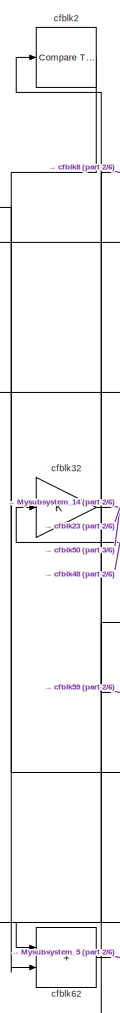
[diagram: root canvas - part 1/6, top left region]
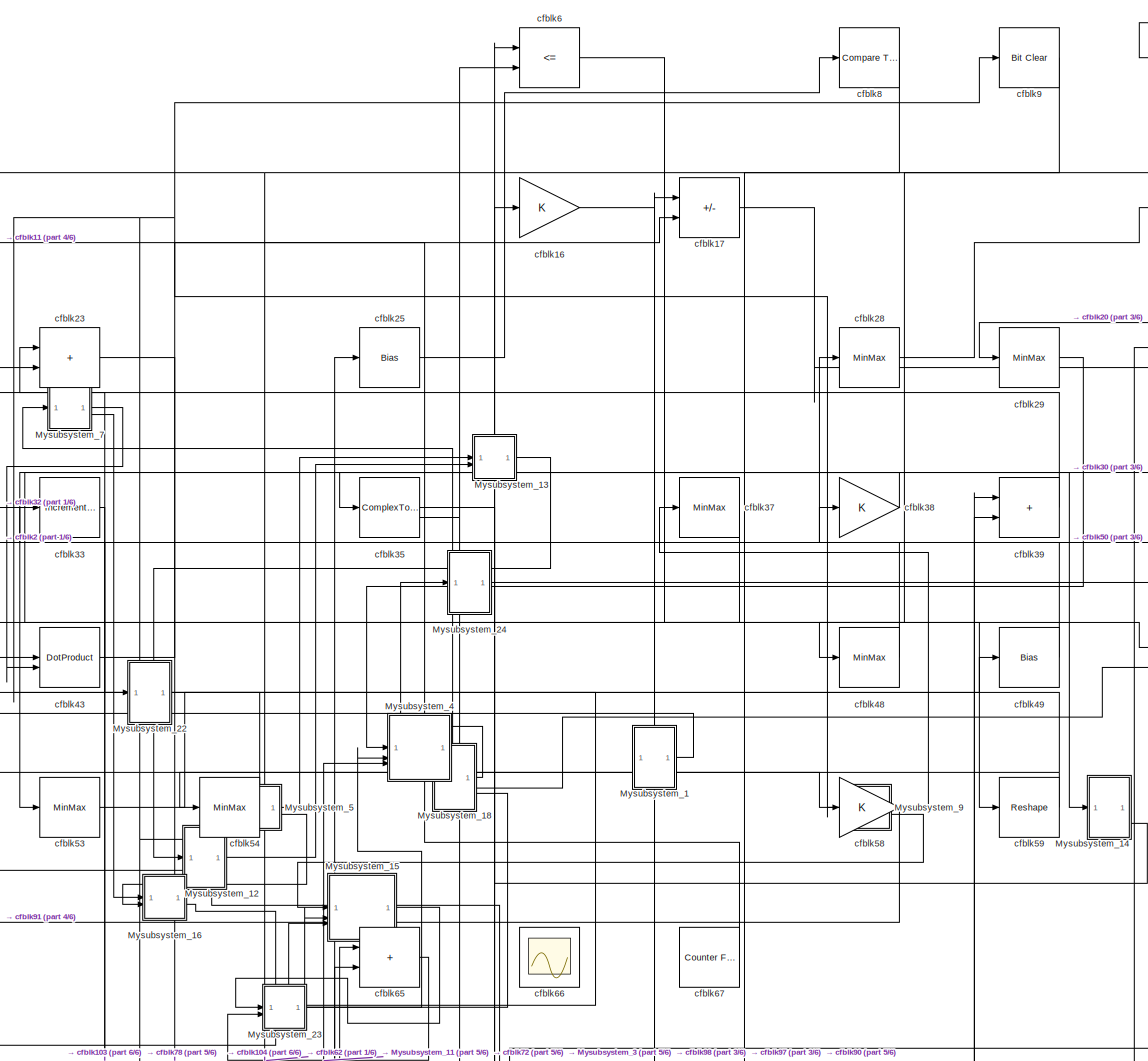
[diagram: root canvas - part 2/6, full width, middle band]
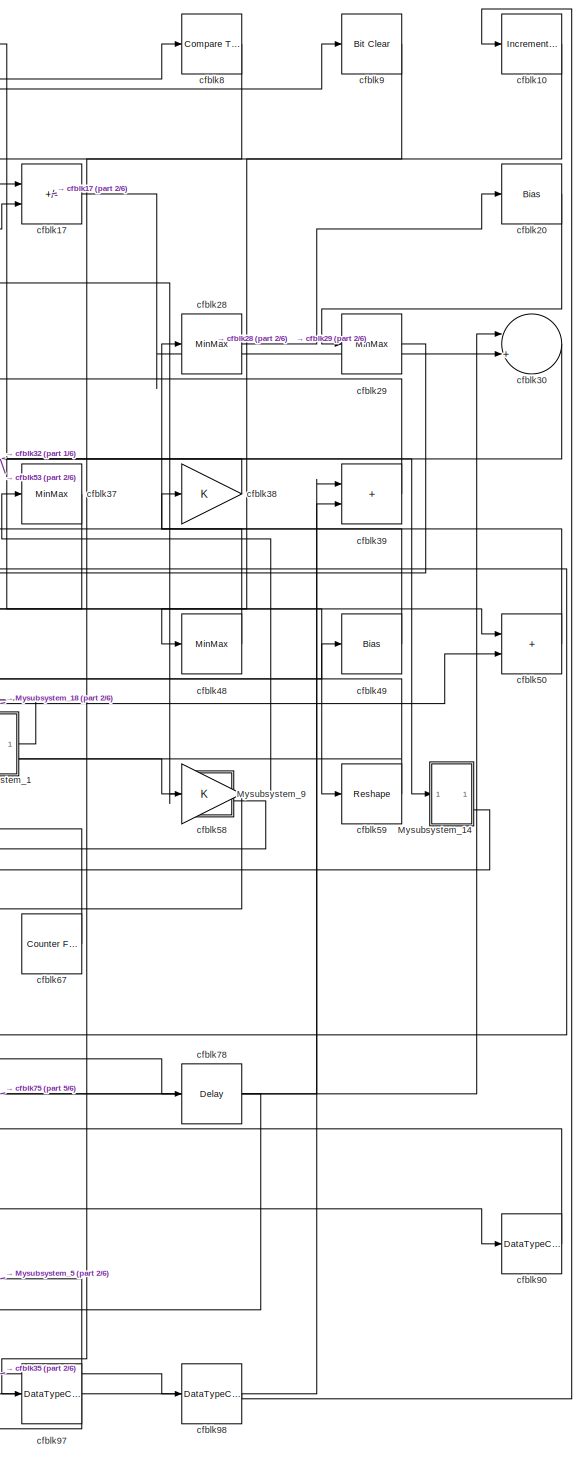
[diagram: root canvas - part 3/6, right side, full height]
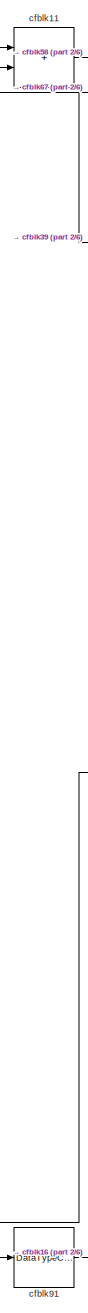
[diagram: root canvas - part 4/6, left side, full height]
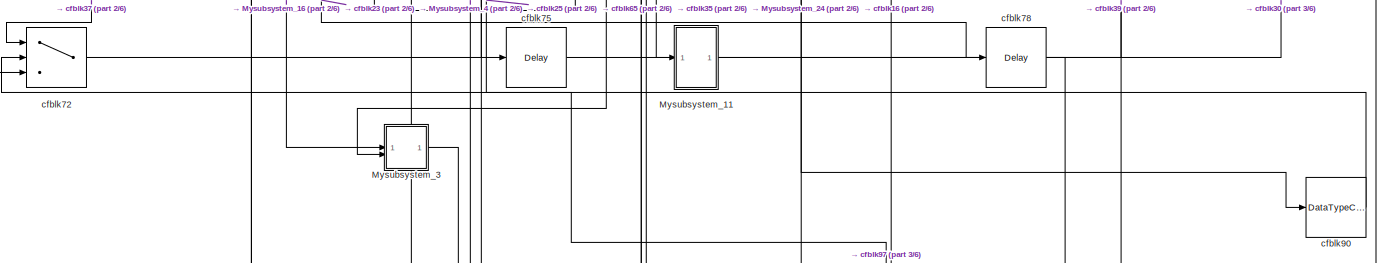
[diagram: root canvas - part 5/6, full width, bottom band]
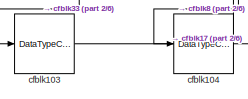
[diagram: root canvas - part 6/6, bottom left region]
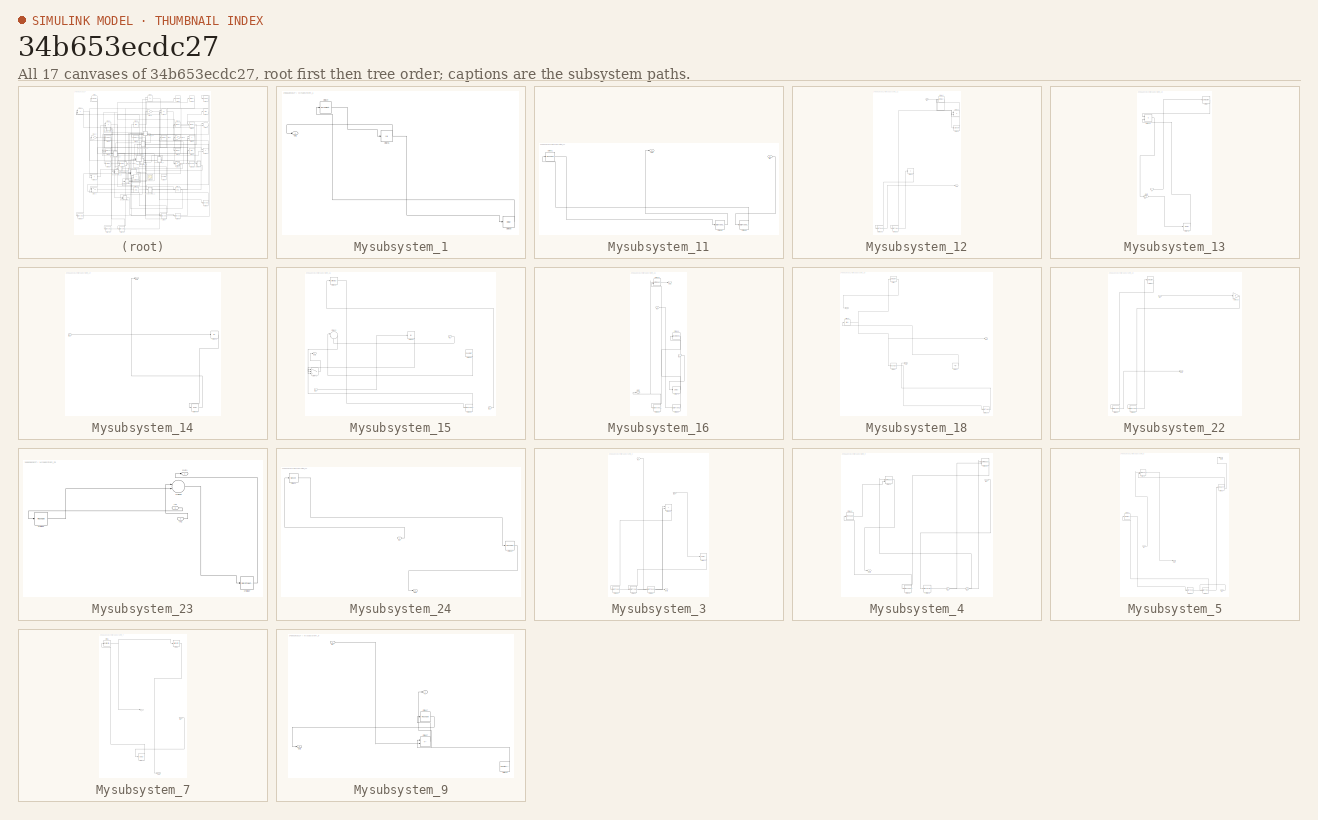
[diagram: thumbnail index - all 17 canvases of the model, root first then tree order]
MODEL slx_34b653ecdc27
KIND model
CONFIG AbsTol = auto
CONFIG EnableMultiTasking = off
CONFIG FixedStep = auto
CONFIG MaxStep = auto
CONFIG MinStep = auto
CONFIG RelTol = 1e-3
CONFIG SampleTimeConstraint = Unconstrained
CONFIG SolverName = VariableStepAuto
CONFIG StartTime = 0.0
CONFIG StopTime = 10.0
BLOCK [SubSystem] Mysubsystem_1
  RTWFcnName = Mysubsystem_1
  RTWFcnNameOpts = User specified
  RTWFileNameOpts = Use function name
  RTWSystemCode = Reusable function
  TreatAsAtomicUnit = on
BLOCK [Outport] Mysubsystem_1/Out1
BLOCK [Reference] Mysubsystem_1/cfblk34  REF=hdlsllib/Math
Operations/Increment
Real World
  SourceBlock = hdlsllib/Math\nOperations/Increment\nReal World
  SourceType = Real World Value Increment
BLOCK [Abs] Mysubsystem_1/cfblk46
  SaturateOnIntegerOverflow = off
BLOCK [Delay] Mysubsystem_1/cfblk80
  InputPortMap = u0
  SampleTime = 1
BLOCK [SubSystem] Mysubsystem_11
  RTWFcnName = Mysubsystem_11
  RTWFcnNameOpts = User specified
  RTWFileNameOpts = Use function name
  RTWSystemCode = Reusable function
  TreatAsAtomicUnit = on
BLOCK [Inport] Mysubsystem_11/In1
BLOCK [Outport] Mysubsystem_11/Out1
BLOCK [Reshape] Mysubsystem_11/cfblk51
BLOCK [DataTypeConversion] Mysubsystem_11/cfblk88
  OutDataTypeStr = uint8
  RndMeth = Floor
  SaturateOnIntegerOverflow = off
BLOCK [DataTypeConversion] Mysubsystem_11/cfblk89
  OutDataTypeStr = uint8
  RndMeth = Floor
  SaturateOnIntegerOverflow = off
BLOCK [SubSystem] Mysubsystem_12
  RTWFcnName = Mysubsystem_12
  RTWFcnNameOpts = User specified
  RTWFileNameOpts = Use function name
  RTWSystemCode = Reusable function
  TreatAsAtomicUnit = on
BLOCK [Inport] Mysubsystem_12/In1
BLOCK [Outport] Mysubsystem_12/Out1
BLOCK [DataTypeConversion] Mysubsystem_12/cfblk101
  OutDataTypeStr = uint8
  RndMeth = Floor
  SaturateOnIntegerOverflow = off
BLOCK [DataTypeConversion] Mysubsystem_12/cfblk102
  OutDataTypeStr = uint8
  RndMeth = Floor
  SaturateOnIntegerOverflow = off
BLOCK [MinMax] Mysubsystem_12/cfblk15
BLOCK [Product] Mysubsystem_12/cfblk26
  Inputs = */
  RndMeth = Zero
  SaturateOnIntegerOverflow = on
BLOCK [Signum] Mysubsystem_12/cfblk36
BLOCK [Sum] Mysubsystem_12/cfblk63
  IconShape = rectangular
  Inputs = +
BLOCK [SubSystem] Mysubsystem_13
  RTWFcnName = Mysubsystem_13
  RTWFcnNameOpts = User specified
  RTWFileNameOpts = Use function name
  RTWSystemCode = Reusable function
  TreatAsAtomicUnit = on
BLOCK [Inport] Mysubsystem_13/In2
  Port = 2
BLOCK [Outport] Mysubsystem_13/Out1
BLOCK [Product] Mysubsystem_13/cfblk14
  Inputs = */
  RndMeth = Zero
  SaturateOnIntegerOverflow = on
BLOCK [Reference] Mysubsystem_13/cfblk7  REF=hdlsllib/Logic and Bit
Operations/Compare
To Constant
  SourceBlock = hdlsllib/Logic and Bit\nOperations/Compare\nTo Constant
  SourceType = Compare To Constant
BLOCK [Delay] Mysubsystem_13/cfblk76
  InputPortMap = u0
  SampleTime = 1
BLOCK [Inport] Mysubsystem_13/u
BLOCK [SubSystem] Mysubsystem_14
  RTWFcnName = Mysubsystem_14
  RTWFcnNameOpts = User specified
  RTWFileNameOpts = Use function name
  RTWSystemCode = Reusable function
  TreatAsAtomicUnit = on
BLOCK [Inport] Mysubsystem_14/In1
BLOCK [Outport] Mysubsystem_14/Out1
BLOCK [Abs] Mysubsystem_14/cfblk40
  SaturateOnIntegerOverflow = off
BLOCK [Delay] Mysubsystem_14/cfblk79
  InputPortMap = u0
  SampleTime = 1
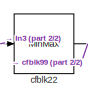
[diagram: Mysubsystem_15 - part 1/2, top left region]
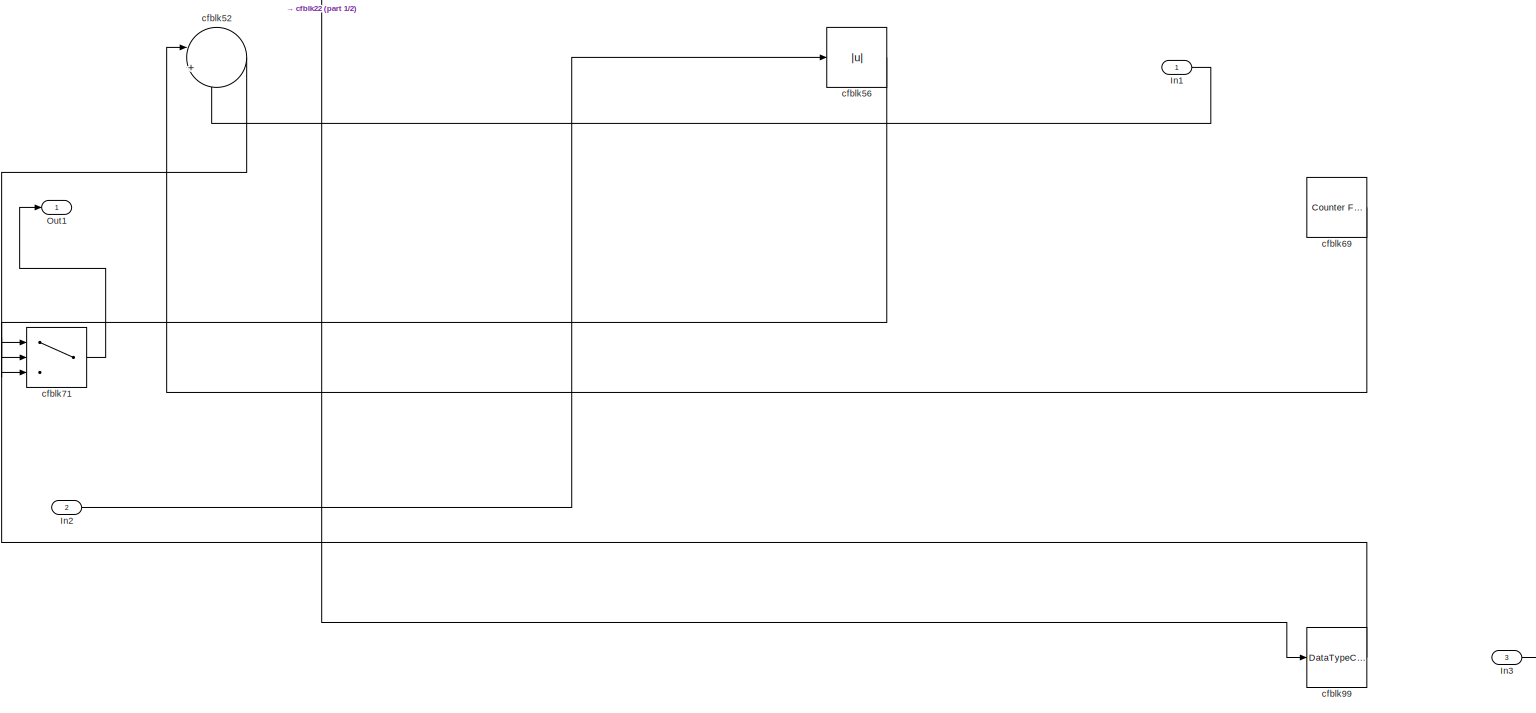
[diagram: Mysubsystem_15 - part 2/2, full width, bottom band]
BLOCK [SubSystem] Mysubsystem_15
  RTWFcnName = Mysubsystem_15
  RTWFcnNameOpts = User specified
  RTWFileNameOpts = Use function name
  RTWSystemCode = Reusable function
  TreatAsAtomicUnit = on
BLOCK [Inport] Mysubsystem_15/In1
BLOCK [Inport] Mysubsystem_15/In2
  Port = 2
BLOCK [Inport] Mysubsystem_15/In3
  Port = 3
BLOCK [Outport] Mysubsystem_15/Out1
BLOCK [MinMax] Mysubsystem_15/cfblk22
BLOCK [Sum] Mysubsystem_15/cfblk52
  Inputs = |++
BLOCK [Abs] Mysubsystem_15/cfblk56
  SaturateOnIntegerOverflow = off
BLOCK [Reference] Mysubsystem_15/cfblk69  REF=hdlsllib/Sources/Counter
Free-Running
  SourceBlock = hdlsllib/Sources/Counter\nFree-Running
  SourceType = Counter Free-Running
BLOCK [Switch] Mysubsystem_15/cfblk71
  InputSameDT = off
  SaturateOnIntegerOverflow = off
BLOCK [DataTypeConversion] Mysubsystem_15/cfblk99
  OutDataTypeStr = uint8
  RndMeth = Floor
  SaturateOnIntegerOverflow = off
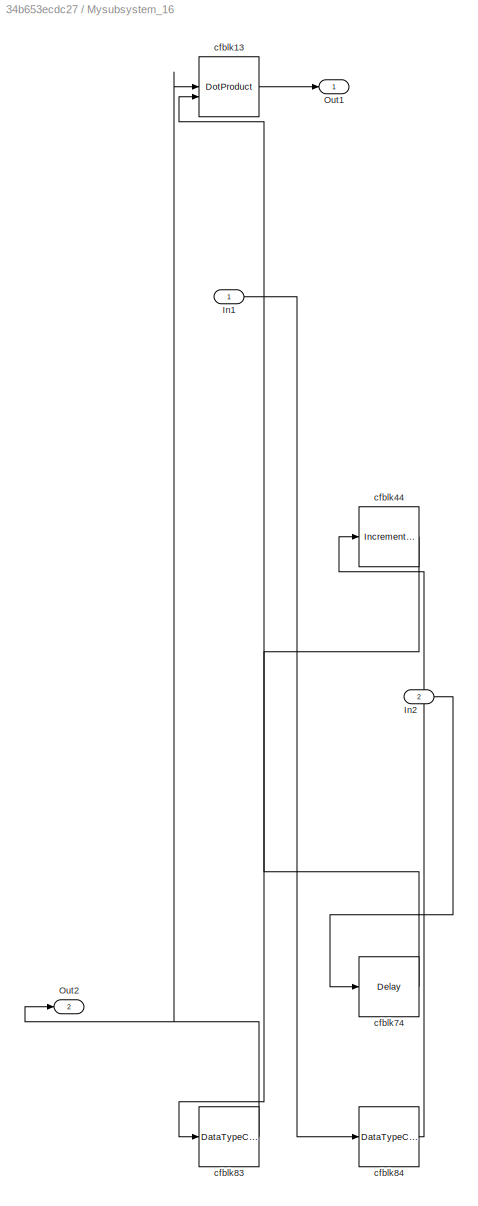
BLOCK [SubSystem] Mysubsystem_16
  RTWFcnName = Mysubsystem_16
  RTWFcnNameOpts = User specified
  RTWFileNameOpts = Use function name
  RTWSystemCode = Reusable function
  TreatAsAtomicUnit = on
BLOCK [Inport] Mysubsystem_16/In1
BLOCK [Inport] Mysubsystem_16/In2
  Port = 2
BLOCK [Outport] Mysubsystem_16/Out1
BLOCK [Outport] Mysubsystem_16/Out2
  Port = 2
BLOCK [DotProduct] Mysubsystem_16/cfblk13
  OutDataTypeStr = Inherit: Inherit via internal rule
BLOCK [Reference] Mysubsystem_16/cfblk44  REF=hdlsllib/Math
Operations/Increment
Real World
  SourceBlock = hdlsllib/Math\nOperations/Increment\nReal World
  SourceType = Real World Value Increment
BLOCK [Delay] Mysubsystem_16/cfblk74
  InputPortMap = u0
  SampleTime = 1
BLOCK [DataTypeConversion] Mysubsystem_16/cfblk83
  RndMeth = Floor
  SaturateOnIntegerOverflow = off
BLOCK [DataTypeConversion] Mysubsystem_16/cfblk84
  OutDataTypeStr = uint8
  RndMeth = Floor
  SaturateOnIntegerOverflow = off
BLOCK [SubSystem] Mysubsystem_18
  RTWFcnName = Mysubsystem_18
  RTWFcnNameOpts = User specified
  RTWFileNameOpts = Use function name
  RTWSystemCode = Reusable function
  TreatAsAtomicUnit = on
BLOCK [Outport] Mysubsystem_18/Out2
  Port = 2
BLOCK [Outport] Mysubsystem_18/Out3
  Port = 3
BLOCK [DataTypeConversion] Mysubsystem_18/cfblk100
  OutDataTypeStr = uint8
  RndMeth = Floor
  SaturateOnIntegerOverflow = off
BLOCK [Bias] Mysubsystem_18/cfblk31
  Bias = 0.0
  SaturateOnIntegerOverflow = off
BLOCK [Reference] Mysubsystem_18/cfblk4  REF=hdlsllib/Logic and Bit
Operations/Compare
To Zero
  SourceBlock = hdlsllib/Logic and Bit\nOperations/Compare\nTo Zero
  SourceType = Compare To Zero
BLOCK [Reshape] Mysubsystem_18/cfblk64
BLOCK [Ground] Mysubsystem_18/cfblk68
BLOCK [Outport] Mysubsystem_18/y
BLOCK [SubSystem] Mysubsystem_22
  RTWFcnName = Mysubsystem_22
  RTWFcnNameOpts = User specified
  RTWFileNameOpts = Use function name
  RTWSystemCode = Reusable function
  TreatAsAtomicUnit = on
BLOCK [Inport] Mysubsystem_22/In1
BLOCK [Outport] Mysubsystem_22/Out1
BLOCK [Gain] Mysubsystem_22/cfblk18
BLOCK [Reference] Mysubsystem_22/cfblk3  REF=hdlsllib/Logic and Bit
Operations/Compare
To Constant
  SourceBlock = hdlsllib/Logic and Bit\nOperations/Compare\nTo Constant
  SourceType = Compare To Constant
BLOCK [DataTypeConversion] Mysubsystem_22/cfblk81
  OutDataTypeStr = uint8
  RndMeth = Floor
  SaturateOnIntegerOverflow = off
BLOCK [DataTypeConversion] Mysubsystem_22/cfblk82
  OutDataTypeStr = uint8
  RndMeth = Floor
  SaturateOnIntegerOverflow = off
BLOCK [SubSystem] Mysubsystem_23
  RTWFcnName = Mysubsystem_23
  RTWFcnNameOpts = User specified
  RTWFileNameOpts = Use function name
  RTWSystemCode = Reusable function
  TreatAsAtomicUnit = on
BLOCK [Inport] Mysubsystem_23/In1
BLOCK [Inport] Mysubsystem_23/In2
  Port = 2
BLOCK [Outport] Mysubsystem_23/Out1
BLOCK [Sum] Mysubsystem_23/cfblk55
  Inputs = |++
BLOCK [Reshape] Mysubsystem_23/cfblk61
BLOCK [DataTypeConversion] Mysubsystem_23/cfblk87
  OutDataTypeStr = uint8
  RndMeth = Floor
  SaturateOnIntegerOverflow = off
BLOCK [SubSystem] Mysubsystem_24
  RTWFcnName = Mysubsystem_24
  RTWFcnNameOpts = User specified
  RTWFileNameOpts = Use function name
  RTWSystemCode = Reusable function
  TreatAsAtomicUnit = on
BLOCK [Inport] Mysubsystem_24/In1
BLOCK [Outport] Mysubsystem_24/Out1
BLOCK [Signum] Mysubsystem_24/cfblk21
BLOCK [Reshape] Mysubsystem_24/cfblk60
BLOCK [SubSystem] Mysubsystem_3
  RTWFcnName = Mysubsystem_3
  RTWFcnNameOpts = User specified
  RTWFileNameOpts = Use function name
  RTWSystemCode = Reusable function
  TreatAsAtomicUnit = on
BLOCK [Inport] Mysubsystem_3/In1
BLOCK [Inport] Mysubsystem_3/In2
  Port = 2
BLOCK [Outport] Mysubsystem_3/Out1
BLOCK [Sum] Mysubsystem_3/cfblk45
  IconShape = rectangular
BLOCK [Delay] Mysubsystem_3/cfblk77
  InputPortMap = u0
  SampleTime = 1
BLOCK [DataTypeConversion] Mysubsystem_3/cfblk92
  RndMeth = Floor
  SaturateOnIntegerOverflow = off
BLOCK [DataTypeConversion] Mysubsystem_3/cfblk93
  OutDataTypeStr = uint8
  RndMeth = Floor
  SaturateOnIntegerOverflow = off
BLOCK [DataTypeConversion] Mysubsystem_3/cfblk94
  OutDataTypeStr = uint8
  RndMeth = Floor
  SaturateOnIntegerOverflow = off
BLOCK [SubSystem] Mysubsystem_4
  RTWFcnName = Mysubsystem_4
  RTWFcnNameOpts = User specified
  RTWFileNameOpts = Use function name
  RTWSystemCode = Reusable function
  TreatAsAtomicUnit = on
BLOCK [Inport] Mysubsystem_4/In1
BLOCK [Inport] Mysubsystem_4/In2
  Port = 2
BLOCK [Inport] Mysubsystem_4/In3
  Port = 3
BLOCK [Outport] Mysubsystem_4/Out1
BLOCK [DotProduct] Mysubsystem_4/cfblk19
  OutDataTypeStr = Inherit: Inherit via internal rule
BLOCK [DotProduct] Mysubsystem_4/cfblk24
  OutDataTypeStr = Inherit: Inherit via internal rule
BLOCK [Reshape] Mysubsystem_4/cfblk42
BLOCK [DataTypeConversion] Mysubsystem_4/cfblk85
  OutDataTypeStr = uint8
  RndMeth = Floor
  SaturateOnIntegerOverflow = off
BLOCK [DataTypeConversion] Mysubsystem_4/cfblk86
  OutDataTypeStr = uint8
  RndMeth = Floor
  SaturateOnIntegerOverflow = off
BLOCK [SubSystem] Mysubsystem_5
  RTWFcnName = Mysubsystem_5
  RTWFcnNameOpts = User specified
  RTWFileNameOpts = Use function name
  RTWSystemCode = Reusable function
  TreatAsAtomicUnit = on
BLOCK [Inport] Mysubsystem_5/In1
BLOCK [Inport] Mysubsystem_5/In2
  Port = 2
BLOCK [Outport] Mysubsystem_5/Out1
BLOCK [Outport] Mysubsystem_5/Out2
  Port = 2
BLOCK [DotProduct] Mysubsystem_5/cfblk12
  OutDataTypeStr = Inherit: Inherit via internal rule
BLOCK [ComplexToRealImag] Mysubsystem_5/cfblk27
BLOCK [MinMax] Mysubsystem_5/cfblk41
BLOCK [DataTypeConversion] Mysubsystem_5/cfblk95
  OutDataTypeStr = uint8
  RndMeth = Floor
  SaturateOnIntegerOverflow = off
BLOCK [DataTypeConversion] Mysubsystem_5/cfblk96
  OutDataTypeStr = uint8
  RndMeth = Floor
  SaturateOnIntegerOverflow = off
BLOCK [SubSystem] Mysubsystem_7
  RTWFcnName = Mysubsystem_7
  RTWFcnNameOpts = User specified
  RTWFileNameOpts = Use function name
  RTWSystemCode = Reusable function
  TreatAsAtomicUnit = on
BLOCK [Inport] Mysubsystem_7/In1
BLOCK [Outport] Mysubsystem_7/Out2
  Port = 2
BLOCK [Reference] Mysubsystem_7/cfblk1  REF=simulink/Logic and Bit
Operations/Extract Bits
  LibrarySourceBlock = hdlsllib/Logic and Bit\nOperations/Extract Bits
  SourceBlock = simulink/Logic and Bit\nOperations/Extract Bits
  SourceType = Extract Bits
BLOCK [ArithShift] Mysubsystem_7/cfblk5
  BitShiftNumber = 8
  InputPortMap = u0
BLOCK [Delay] Mysubsystem_7/cfblk73
  InputPortMap = u0
  SampleTime = 1
BLOCK [Outport] Mysubsystem_7/y
BLOCK [SubSystem] Mysubsystem_9
  RTWFcnName = Mysubsystem_9
  RTWFcnNameOpts = User specified
  RTWFileNameOpts = Use function name
  RTWSystemCode = Reusable function
  TreatAsAtomicUnit = on
BLOCK [Inport] Mysubsystem_9/In1
BLOCK [Outport] Mysubsystem_9/Out2
  Port = 2
BLOCK [Reshape] Mysubsystem_9/cfblk47
BLOCK [Sum] Mysubsystem_9/cfblk57
  IconShape = rectangular
  Inputs = +-
BLOCK [Reference] Mysubsystem_9/cfblk70  REF=hdlsllib/Sources/Counter
Limited
  SourceBlock = hdlsllib/Sources/Counter\nLimited
  SourceType = Counter Limited
BLOCK [Outport] Mysubsystem_9/y
BLOCK [Reference] cfblk10  REF=hdlsllib/Math
Operations/Increment
Real World
  SourceBlock = hdlsllib/Math\nOperations/Increment\nReal World
  SourceType = Real World Value Increment
BLOCK [DataTypeConversion] cfblk103
  OutDataTypeStr = uint8
  RndMeth = Floor
  SaturateOnIntegerOverflow = off
BLOCK [DataTypeConversion] cfblk104
  OutDataTypeStr = uint8
  RndMeth = Floor
  SaturateOnIntegerOverflow = off
BLOCK [Sum] cfblk11
  IconShape = rectangular
BLOCK [Gain] cfblk16
BLOCK [Sum] cfblk17
  IconShape = rectangular
  Inputs = +-
BLOCK [Reference] cfblk2  REF=hdlsllib/Logic and Bit
Operations/Compare
To Constant
  SourceBlock = hdlsllib/Logic and Bit\nOperations/Compare\nTo Constant
  SourceType = Compare To Constant
BLOCK [Bias] cfblk20
  Bias = 0.0
  SaturateOnIntegerOverflow = off
BLOCK [Sum] cfblk23
  IconShape = rectangular
BLOCK [Bias] cfblk25
  Bias = 0.0
  SaturateOnIntegerOverflow = off
BLOCK [MinMax] cfblk28
BLOCK [MinMax] cfblk29
BLOCK [Sum] cfblk30
  Inputs = |++
BLOCK [Gain] cfblk32
BLOCK [Reference] cfblk33  REF=hdlsllib/Math
Operations/Increment
Real World
  SourceBlock = hdlsllib/Math\nOperations/Increment\nReal World
  SourceType = Real World Value Increment
BLOCK [ComplexToRealImag] cfblk35
BLOCK [MinMax] cfblk37
BLOCK [Gain] cfblk38
BLOCK [Sum] cfblk39
  IconShape = rectangular
BLOCK [DotProduct] cfblk43
  OutDataTypeStr = Inherit: Inherit via internal rule
BLOCK [MinMax] cfblk48
BLOCK [Bias] cfblk49
  Bias = 0.0
  SaturateOnIntegerOverflow = off
BLOCK [Sum] cfblk50
  IconShape = rectangular
BLOCK [MinMax] cfblk53
BLOCK [MinMax] cfblk54
BLOCK [Gain] cfblk58
BLOCK [Reshape] cfblk59
BLOCK [RelationalOperator] cfblk6
  InputSameDT = off
  Operator = <=
  OutDataTypeStr = boolean
BLOCK [Sum] cfblk62
  IconShape = rectangular
BLOCK [Sum] cfblk65
  IconShape = rectangular
BLOCK [Scope] cfblk66
  Floating = on
  NumInputPorts = 1
  ScopeSpecificationString = Simulink.scopes.TimeScopeBlockCfg('CurrentConfiguration', extmgr.ConfigurationSet(extmgr.Configuration('Core','General UI',true,'FigureColor',[0.156862745098039 0.156862745098039 0.156862745098039]),extmgr.Configuration('Core','Source UI',true),extmgr.Configuration('Sources','WiredSimulink',true,'DataLoggingVariableName','ScopeData1','DataLoggingSaveFormat','StructureWithTime','DataLoggingLimitDat...<+2713ch>
BLOCK [Reference] cfblk67  REF=hdlsllib/Sources/Counter
Free-Running
  SourceBlock = hdlsllib/Sources/Counter\nFree-Running
  SourceType = Counter Free-Running
BLOCK [Switch] cfblk72
  InputSameDT = off
  SaturateOnIntegerOverflow = off
BLOCK [Delay] cfblk75
  InputPortMap = u0
  SampleTime = 1
BLOCK [Delay] cfblk78
  InputPortMap = u0
  SampleTime = 1
BLOCK [Reference] cfblk8  REF=hdlsllib/Logic and Bit
Operations/Compare
To Zero
  SourceBlock = hdlsllib/Logic and Bit\nOperations/Compare\nTo Zero
  SourceType = Compare To Zero
BLOCK [Reference] cfblk9  REF=simulink/Logic and Bit
Operations/Bit Clear
  LibrarySourceBlock = hdlsllib/Logic and Bit\nOperations/Bit Clear
  SourceBlock = simulink/Logic and Bit\nOperations/Bit Clear
  SourceType = Bit Clear
BLOCK [DataTypeConversion] cfblk90
  OutDataTypeStr = uint8
  RndMeth = Floor
  SaturateOnIntegerOverflow = off
BLOCK [DataTypeConversion] cfblk91
  OutDataTypeStr = uint8
  RndMeth = Floor
  SaturateOnIntegerOverflow = off
BLOCK [DataTypeConversion] cfblk97
  RndMeth = Floor
  SaturateOnIntegerOverflow = off
BLOCK [DataTypeConversion] cfblk98
  OutDataTypeStr = uint8
  RndMeth = Floor
  SaturateOnIntegerOverflow = off
LINE Mysubsystem_1/cfblk34:1 -> Mysubsystem_1/cfblk46:1
NET Mysubsystem_1/cfblk46:1 -> Mysubsystem_1/Out1:1, Mysubsystem_1/cfblk80:1
LINE Mysubsystem_1/cfblk80:1 -> Mysubsystem_1/cfblk34:1
LINE Mysubsystem_11/In1:1 -> Mysubsystem_11/cfblk89:1
LINE Mysubsystem_11/cfblk51:1 -> Mysubsystem_11/cfblk88:1
LINE Mysubsystem_11/cfblk88:1 -> Mysubsystem_11/Out1:1
LINE Mysubsystem_11/cfblk89:1 -> Mysubsystem_11/cfblk51:1
LINE Mysubsystem_11:1 -> Mysubsystem_4:3
NET Mysubsystem_12/In1:1 -> Mysubsystem_12/cfblk26:2, Mysubsystem_12/cfblk36:1
LINE Mysubsystem_12/cfblk101:1 -> Mysubsystem_12/Out1:1
LINE Mysubsystem_12/cfblk102:1 -> Mysubsystem_12/cfblk63:1
LINE Mysubsystem_12/cfblk15:1 -> Mysubsystem_12/cfblk102:1
LINE Mysubsystem_12/cfblk26:1 -> Mysubsystem_12/cfblk15:1
LINE Mysubsystem_12/cfblk36:1 -> Mysubsystem_12/cfblk26:1
LINE Mysubsystem_12/cfblk63:1 -> Mysubsystem_12/cfblk101:1
LINE Mysubsystem_12:1 -> Mysubsystem_13:2
LINE Mysubsystem_13/In2:1 -> Mysubsystem_13/cfblk76:1
LINE Mysubsystem_13/cfblk14:1 -> Mysubsystem_13/Out1:1
LINE Mysubsystem_13/cfblk76:1 -> Mysubsystem_13/cfblk14:2
LINE Mysubsystem_13/cfblk7:1 -> Mysubsystem_13/cfblk14:1
LINE Mysubsystem_13/u:1 -> Mysubsystem_13/cfblk7:1
LINE Mysubsystem_13:1 -> Mysubsystem_12:1
LINE Mysubsystem_14/In1:1 -> Mysubsystem_14/cfblk40:1
LINE Mysubsystem_14/cfblk40:1 -> Mysubsystem_14/cfblk79:1
LINE Mysubsystem_14/cfblk79:1 -> Mysubsystem_14/Out1:1
LINE Mysubsystem_14:1 -> cfblk6:1
LINE Mysubsystem_15/In1:1 -> Mysubsystem_15/cfblk52:2
LINE Mysubsystem_15/In2:1 -> Mysubsystem_15/cfblk56:1
LINE Mysubsystem_15/In3:1 -> Mysubsystem_15/cfblk22:1
LINE Mysubsystem_15/cfblk22:1 -> Mysubsystem_15/cfblk99:1
LINE Mysubsystem_15/cfblk52:1 -> Mysubsystem_15/cfblk71:2
LINE Mysubsystem_15/cfblk56:1 -> Mysubsystem_15/cfblk71:3
LINE Mysubsystem_15/cfblk69:1 -> Mysubsystem_15/cfblk52:1
LINE Mysubsystem_15/cfblk71:1 -> Mysubsystem_15/Out1:1
LINE Mysubsystem_15/cfblk99:1 -> Mysubsystem_15/cfblk71:1
LINE Mysubsystem_15:1 -> Mysubsystem_23:1
LINE Mysubsystem_16/In1:1 -> Mysubsystem_16/cfblk84:1
LINE Mysubsystem_16/In2:1 -> Mysubsystem_16/cfblk74:1
LINE Mysubsystem_16/cfblk13:1 -> Mysubsystem_16/Out1:1
LINE Mysubsystem_16/cfblk44:1 -> Mysubsystem_16/cfblk83:1
LINE Mysubsystem_16/cfblk74:1 -> Mysubsystem_16/cfblk13:2
NET Mysubsystem_16/cfblk83:1 -> Mysubsystem_16/Out2:1, Mysubsystem_16/cfblk13:1
LINE Mysubsystem_16/cfblk84:1 -> Mysubsystem_16/cfblk44:1
NET Mysubsystem_16:1 -> Mysubsystem_22:1, Mysubsystem_3:1, Mysubsystem_9:1, cfblk9:1
LINE Mysubsystem_16:2 -> cfblk72:3
LINE Mysubsystem_18/cfblk100:1 -> Mysubsystem_18/Out3:1
NET Mysubsystem_18/cfblk31:1 -> Mysubsystem_18/Out2:1, Mysubsystem_18/cfblk4:1, Mysubsystem_18/cfblk64:1
LINE Mysubsystem_18/cfblk4:1 -> Mysubsystem_18/y:1
LINE Mysubsystem_18/cfblk64:1 -> Mysubsystem_18/cfblk100:1
LINE Mysubsystem_18/cfblk68:1 -> Mysubsystem_18/cfblk31:1
LINE Mysubsystem_18:1 -> Mysubsystem_24:1
LINE Mysubsystem_18:2 -> cfblk50:2
LINE Mysubsystem_18:3 -> Mysubsystem_15:3
LINE Mysubsystem_1:1 -> cfblk43:1
LINE Mysubsystem_22/In1:1 -> Mysubsystem_22/cfblk18:1
LINE Mysubsystem_22/cfblk18:1 -> Mysubsystem_22/cfblk82:1
LINE Mysubsystem_22/cfblk3:1 -> Mysubsystem_22/cfblk81:1
LINE Mysubsystem_22/cfblk81:1 -> Mysubsystem_22/Out1:1
LINE Mysubsystem_22/cfblk82:1 -> Mysubsystem_22/cfblk3:1
LINE Mysubsystem_22:1 -> Mysubsystem_15:2
LINE Mysubsystem_23/In1:1 -> Mysubsystem_23/cfblk61:1
LINE Mysubsystem_23/In2:1 -> Mysubsystem_23/cfblk55:1
LINE Mysubsystem_23/cfblk55:1 -> Mysubsystem_23/cfblk87:1
LINE Mysubsystem_23/cfblk61:1 -> Mysubsystem_23/cfblk55:2
LINE Mysubsystem_23/cfblk87:1 -> Mysubsystem_23/Out1:1
LINE Mysubsystem_23:1 -> Mysubsystem_4:2
LINE Mysubsystem_24/In1:1 -> Mysubsystem_24/cfblk21:1
LINE Mysubsystem_24/cfblk21:1 -> Mysubsystem_24/cfblk60:1
LINE Mysubsystem_24/cfblk60:1 -> Mysubsystem_24/Out1:1
LINE Mysubsystem_24:1 -> Mysubsystem_11:1
LINE Mysubsystem_3/In1:1 -> Mysubsystem_3/cfblk94:1
LINE Mysubsystem_3/In2:1 -> Mysubsystem_3/cfblk77:1
LINE Mysubsystem_3/cfblk45:1 -> Mysubsystem_3/cfblk92:1
LINE Mysubsystem_3/cfblk77:1 -> Mysubsystem_3/cfblk93:1
LINE Mysubsystem_3/cfblk92:1 -> Mysubsystem_3/Out1:1
LINE Mysubsystem_3/cfblk93:1 -> Mysubsystem_3/cfblk45:1
LINE Mysubsystem_3/cfblk94:1 -> Mysubsystem_3/cfblk45:2
NET Mysubsystem_3:1 -> cfblk39:2, cfblk65:2
LINE Mysubsystem_4/In1:1 -> Mysubsystem_4/cfblk86:1
LINE Mysubsystem_4/In2:1 -> Mysubsystem_4/cfblk19:2
LINE Mysubsystem_4/In3:1 -> Mysubsystem_4/cfblk24:1
LINE Mysubsystem_4/cfblk19:1 -> Mysubsystem_4/cfblk85:1
LINE Mysubsystem_4/cfblk24:1 -> Mysubsystem_4/Out1:1
LINE Mysubsystem_4/cfblk42:1 -> Mysubsystem_4/cfblk24:2
LINE Mysubsystem_4/cfblk85:1 -> Mysubsystem_4/cfblk42:1
LINE Mysubsystem_4/cfblk86:1 -> Mysubsystem_4/cfblk19:1
LINE Mysubsystem_4:1 -> Mysubsystem_7:1
LINE Mysubsystem_5/In1:1 -> Mysubsystem_5/cfblk12:1
LINE Mysubsystem_5/In2:1 -> Mysubsystem_5/cfblk96:1
LINE Mysubsystem_5/cfblk12:1 -> Mysubsystem_5/Out2:1
LINE Mysubsystem_5/cfblk27:1 -> Mysubsystem_5/cfblk12:2
LINE Mysubsystem_5/cfblk27:2 -> Mysubsystem_5/Out1:1
LINE Mysubsystem_5/cfblk41:1 -> Mysubsystem_5/cfblk95:1
LINE Mysubsystem_5/cfblk95:1 -> Mysubsystem_5/cfblk27:1
LINE Mysubsystem_5/cfblk96:1 -> Mysubsystem_5/cfblk41:1
LINE Mysubsystem_5:1 -> Mysubsystem_13:1
LINE Mysubsystem_5:2 -> Mysubsystem_16:2
LINE Mysubsystem_7/In1:1 -> Mysubsystem_7/cfblk73:1
NET Mysubsystem_7/cfblk1:1 -> Mysubsystem_7/cfblk5:1, Mysubsystem_7/y:1
LINE Mysubsystem_7/cfblk5:1 -> Mysubsystem_7/Out2:1
LINE Mysubsystem_7/cfblk73:1 -> Mysubsystem_7/cfblk1:1
LINE Mysubsystem_7:1 -> cfblk43:2
LINE Mysubsystem_7:2 -> Mysubsystem_16:1
LINE Mysubsystem_9/In1:1 -> Mysubsystem_9/cfblk57:2
LINE Mysubsystem_9/cfblk47:1 -> Mysubsystem_9/Out2:1
LINE Mysubsystem_9/cfblk57:1 -> Mysubsystem_9/cfblk47:1
NET Mysubsystem_9/cfblk70:1 -> Mysubsystem_9/cfblk57:1, Mysubsystem_9/y:1
LINE Mysubsystem_9:1 -> cfblk37:1
LINE Mysubsystem_9:2 -> Mysubsystem_15:1
LINE cfblk103:1 -> cfblk17:1
LINE cfblk104:1 -> cfblk33:1
LINE cfblk10:1 -> cfblk97:1
LINE cfblk11:1 -> cfblk58:1
LINE cfblk16:1 -> cfblk90:1
LINE cfblk17:1 -> cfblk30:2
LINE cfblk20:1 -> cfblk29:1
LINE cfblk23:1 -> cfblk78:1
LINE cfblk25:1 -> cfblk8:1
LINE cfblk28:1 -> cfblk20:1
LINE cfblk29:1 -> Mysubsystem_4:1
LINE cfblk2:1 -> cfblk62:2
LINE cfblk30:1 -> cfblk53:1
NET cfblk32:1 -> Mysubsystem_14:1, cfblk23:2, cfblk50:1
LINE cfblk33:1 -> cfblk103:1
LINE cfblk35:1 -> cfblk98:1
NET cfblk35:2 -> Mysubsystem_3:2, cfblk6:2
LINE cfblk37:1 -> cfblk72:1
LINE cfblk38:1 -> cfblk35:1
LINE cfblk39:1 -> cfblk11:2
LINE cfblk43:1 -> cfblk17:2
LINE cfblk48:1 -> cfblk2:1
LINE cfblk49:1 -> cfblk38:1
LINE cfblk50:1 -> cfblk28:1
LINE cfblk53:1 -> cfblk49:1
LINE cfblk54:1 -> cfblk23:1
LINE cfblk58:1 -> cfblk91:1
NET cfblk59:1 -> cfblk32:1, cfblk54:1
LINE cfblk62:1 -> Mysubsystem_5:1
LINE cfblk65:1 -> Mysubsystem_23:2
LINE cfblk67:1 -> cfblk11:1
LINE cfblk6:1 -> cfblk59:1
NET cfblk72:1 -> cfblk25:1, cfblk65:1
LINE cfblk75:1 -> cfblk30:1
LINE cfblk78:1 -> cfblk39:1
NET cfblk8:1 -> cfblk104:1, cfblk62:1
LINE cfblk90:1 -> cfblk72:2
LINE cfblk91:1 -> cfblk16:1
NET cfblk97:1 -> Mysubsystem_5:2, cfblk75:1
LINE cfblk98:1 -> cfblk10:1
LINE cfblk9:1 -> cfblk48:1
note: NET lines group one-source signal fan-out (src -> all destinations, sorted); 1:1 wires keep LINE
